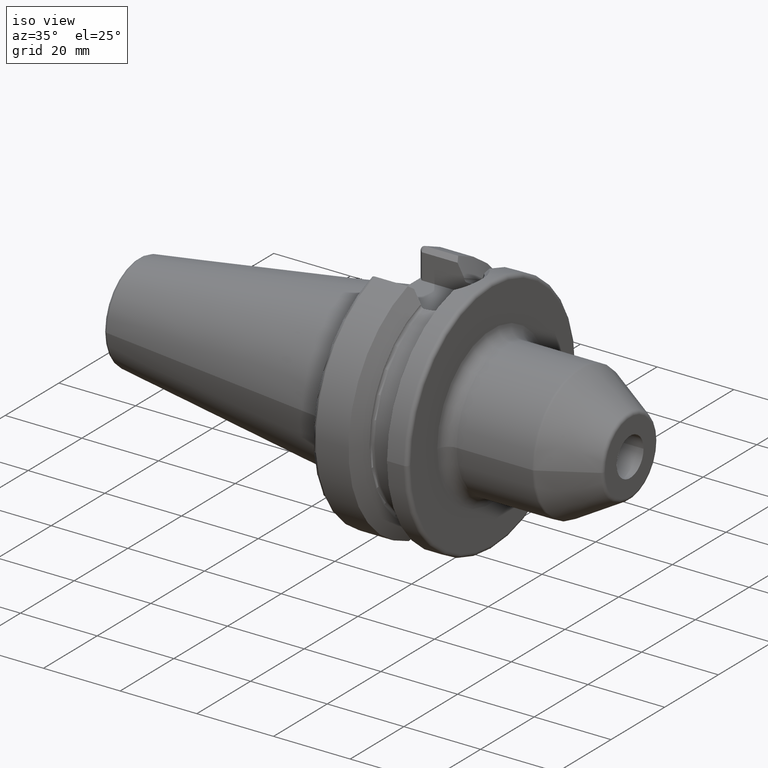
[diagram: clean part render]
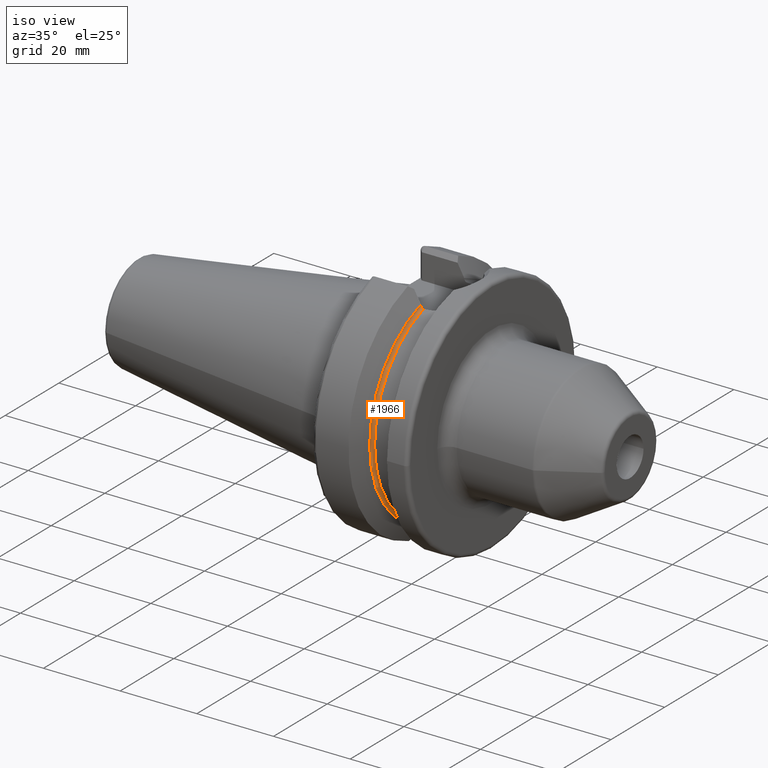
[diagram: same view with one face highlighted and labeled with its STEP entity id]
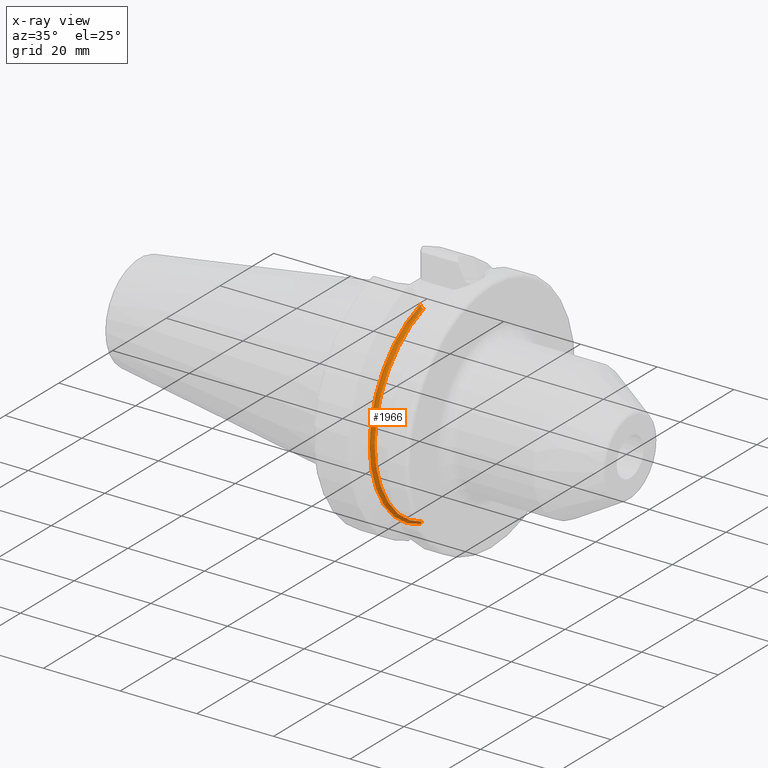
[diagram: x-ray of the same camera — body ghosted, the highlighted face saturated]
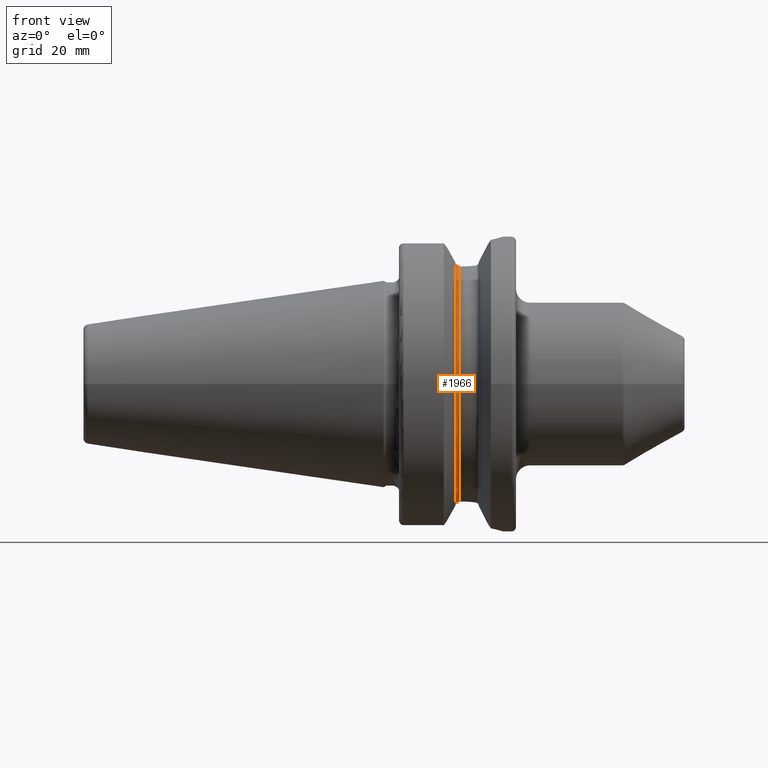
[diagram: same view with one face highlighted and labeled with its STEP entity id]
A machine part, iso view. The second image highlights one B-rep face of the part: STEP entity #1966.
The next image is the same camera in x-ray: the body ghosted, the highlighted face saturated — about 5% of this face is hidden behind the body in this view.
A second angle (front view) of the same face is appended — the face is thin or edge-on in the first view.
In plain terms, the highlighted toroidal blend (fillet) surface has major radius 27.125 mm and minor (blend) radius 0.75 mm.
Its self-contained STEP definition (entity closure, byte-faithful):
#297=CARTESIAN_POINT('',(1.48125E1,-8.095E0,-2.510202382279E1));
#298=CARTESIAN_POINT('',(1.474626583175E1,-8.095E0,-2.510202382279E1));
#299=CARTESIAN_POINT('',(1.462196122728E1,-8.095E0,-2.512019824361E1));
#300=CARTESIAN_POINT('',(1.446015344720E1,-8.095E0,-2.518681119149E1));
#301=CARTESIAN_POINT('',(1.432194250541E1,-8.095E0,-2.528577048685E1));
#302=CARTESIAN_POINT('',(1.421112933741E1,-8.095E0,-2.540882158997E1));
#303=CARTESIAN_POINT('',(1.412599264270E1,-8.095E0,-2.555700431287E1));
#304=CARTESIAN_POINT('',(1.407429746920E1,-8.095E0,-2.571931087657E1));
#305=CARTESIAN_POINT('',(1.40625E1,-8.095E0,-2.583143069402E1));
#306=CARTESIAN_POINT('',(1.40625E1,-8.095E0,-2.588892813540E1));
#343=CARTESIAN_POINT('',(1.40625E1,0.E0,0.E0));
#344=DIRECTION('',(-1.E0,0.E0,0.E0));
#345=DIRECTION('',(0.E0,-2.984331797235E-1,-9.544305303374E-1));
#346=AXIS2_PLACEMENT_3D('',#343,#344,#345);
#374=CARTESIAN_POINT('',(1.48125E1,0.E0,0.E0));
#375=DIRECTION('',(-1.E0,0.E0,0.E0));
#376=DIRECTION('',(0.E0,-3.069194312796E-1,-9.517355003902E-1));
#377=AXIS2_PLACEMENT_3D('',#374,#375,#376);
#555=CARTESIAN_POINT('',(1.40625E1,-8.095E0,2.588892813540E1));
#556=CARTESIAN_POINT('',(1.40625E1,-8.095E0,2.583126388175E1));
#557=CARTESIAN_POINT('',(1.407435820302E1,-8.095E0,2.571884424401E1));
#558=CARTESIAN_POINT('',(1.412637479973E1,-8.095E0,2.555605345243E1));
#559=CARTESIAN_POINT('',(1.421189057239E1,-8.095E0,2.540775968571E1));
#560=CARTESIAN_POINT('',(1.432287532809E1,-8.095E0,2.528495902414E1));
#561=CARTESIAN_POINT('',(1.446091461049E1,-8.095E0,2.518643315091E1));
#562=CARTESIAN_POINT('',(1.462231567214E1,-8.095E0,2.512013808222E1));
#563=CARTESIAN_POINT('',(1.474638827310E1,-8.095E0,2.510202382279E1));
#564=CARTESIAN_POINT('',(1.48125E1,-8.095E0,2.510202382279E1));
#1302=CARTESIAN_POINT('',(1.40625E1,-8.095E0,-2.588892813540E1));
#1303=CARTESIAN_POINT('',(1.40625E1,-8.095E0,2.588892813540E1));
#1304=VERTEX_POINT('',#1302);
#1305=VERTEX_POINT('',#1303);
#1310=CARTESIAN_POINT('',(1.48125E1,-8.095E0,-2.510202382279E1));
#1311=CARTESIAN_POINT('',(1.48125E1,-8.095E0,2.510202382279E1));
#1312=VERTEX_POINT('',#1310);
#1313=VERTEX_POINT('',#1311);
#1953=CARTESIAN_POINT('',(1.48125E1,0.E0,0.E0));
#1954=DIRECTION('',(1.E0,0.E0,0.E0));
#1955=DIRECTION('',(0.E0,-1.E0,0.E0));
#1956=AXIS2_PLACEMENT_3D('',#1953,#1954,#1955);
#1957=TOROIDAL_SURFACE('',#1956,2.7125E1,7.5E-1);
#1959=ORIENTED_EDGE('',*,*,#1958,.F.);
#1960=ORIENTED_EDGE('',*,*,#1922,.T.);
#1961=ORIENTED_EDGE('',*,*,#1808,.T.);
#1963=ORIENTED_EDGE('',*,*,#1962,.T.);
#1964=EDGE_LOOP('',(#1959,#1960,#1961,#1963));
#1965=FACE_OUTER_BOUND('',#1964,.F.);
#1966=ADVANCED_FACE('',(#1965),#1957,.F.);
#307=B_SPLINE_CURVE_WITH_KNOTS('',3,(#297,#298,#299,#300,#301,#302,#303,#304,
#305,#306),.UNSPECIFIED.,.F.,.F.,(4,1,1,1,1,1,1,4),(0.E0,1.428571428571E-1,
2.857142857143E-1,4.285714285714E-1,5.714285714286E-1,7.142857142857E-1,
8.571428571429E-1,1.E0),.UNSPECIFIED.);
#347=CIRCLE('',#346,2.7125E1);
#378=CIRCLE('',#377,2.6375E1);
#565=B_SPLINE_CURVE_WITH_KNOTS('',3,(#555,#556,#557,#558,#559,#560,#561,#562,
#563,#564),.UNSPECIFIED.,.F.,.F.,(4,1,1,1,1,1,1,4),(0.E0,1.428571428571E-1,
2.857142857143E-1,4.285714285714E-1,5.714285714286E-1,7.142857142857E-1,
8.571428571429E-1,1.E0),.UNSPECIFIED.);
#1808=EDGE_CURVE('',#1304,#1305,#347,.T.);
#1922=EDGE_CURVE('',#1312,#1304,#307,.T.);
#1958=EDGE_CURVE('',#1312,#1313,#378,.T.);
#1962=EDGE_CURVE('',#1305,#1313,#565,.T.);